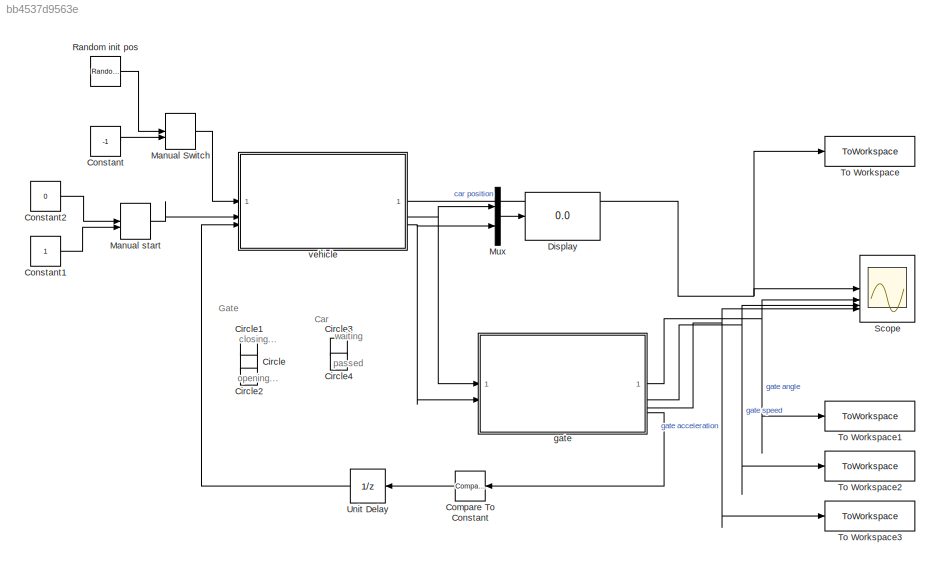
MODEL slx_bb4537d9563e
KIND model
CONFIG AbsTol = auto
CONFIG EnableMultiTasking = off
CONFIG FixedStep = dt
CONFIG MaxStep = auto
CONFIG MinStep = auto
CONFIG RelTol = 1e-3
CONFIG SampleTimeConstraint = Unconstrained
CONFIG SolverName = FixedStepAuto
CONFIG StartTime = 0.0
CONFIG StopTime = inf
WORKSPACE source: MATLAB code (in-file)
WORKSPACE dt = 0.2
BLOCK [LampBlock] Circle
  Icon = Circle
  LabelPosition = Hide
BLOCK [LampBlock] Circle1
  Icon = Circle
  LabelPosition = Hide
BLOCK [LampBlock] Circle2
  Icon = Circle
  LabelPosition = Hide
BLOCK [LampBlock] Circle3
  Icon = Circle
  LabelPosition = Hide
BLOCK [LampBlock] Circle4
  Icon = Circle
  LabelPosition = Hide
BLOCK [Reference] Compare To Constant  REF=simulink/Logic and Bit
Operations/Compare
To Constant
  SourceBlock = simulink/Logic and Bit\nOperations/Compare\nTo Constant
  SourceType = Compare To Constant
BLOCK [Constant] Constant
  Value = -1
BLOCK [Constant] Constant1
BLOCK [Constant] Constant2
  Value = 0
BLOCK [Display] Display
  Decimation = 1
BLOCK [ManualSwitch] Manual Switch
  CurrentSetting = 0
BLOCK [ManualSwitch] Manual start
BLOCK [Mux] Mux
  DisplayOption = bar
  Inputs = 2
BLOCK [RandomNumber] Random init pos
  Mean = -15
  Variance = 5
BLOCK [Scope] Scope
  Floating = off
  NumInputPorts = 4
  ScopeSpecificationString = Simulink.scopes.TimeScopeBlockCfg('CurrentConfiguration', extmgr.ConfigurationSet(extmgr.Configuration('Core','General UI',true),extmgr.Configuration('Core','Source UI',true),extmgr.Configuration('Sources','WiredSimulink',true),extmgr.Configuration('Visuals','Time Domain',true,'SerializedDisplays',{struct('MinYLimReal','-1.625','MaxYLimReal','4.625','YLabelReal','','MinYLimMag','0.00000','MaxYLimM...<+3855ch>
BLOCK [ToWorkspace] To Workspace
  FixptAsFi = on
  MaxDataPoints = inf
  SampleTime = -1
  Save2DSignal = 2-D array (concatenate along first dimension)
  VariableName = car_position
BLOCK [ToWorkspace] To Workspace1
  FixptAsFi = on
  MaxDataPoints = inf
  SampleTime = -1
  Save2DSignal = 2-D array (concatenate along first dimension)
  VariableName = gate_angle
BLOCK [ToWorkspace] To Workspace2
  FixptAsFi = on
  MaxDataPoints = inf
  SampleTime = -1
  Save2DSignal = 2-D array (concatenate along first dimension)
  VariableName = gate_speed
BLOCK [ToWorkspace] To Workspace3
  FixptAsFi = on
  MaxDataPoints = inf
  SampleTime = -1
  Save2DSignal = 2-D array (concatenate along first dimension)
  VariableName = gate_acceleration
BLOCK [UnitDelay] Unit Delay
  HasFrameUpgradeWarning = on
  SampleTime = -1
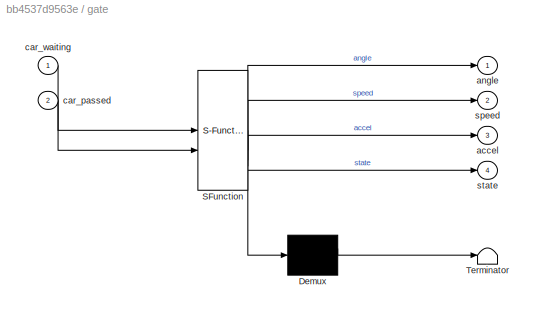
BLOCK [SubSystem] gate
  ErrorFcn = Stateflow.Translate.translate
  PermitHierarchicalResolution = ExplicitOnly
  SFBlockType = Chart
  TreatAsAtomicUnit = on
BLOCK [Demux] gate/ Demux 
  Outputs = 1
BLOCK [S-Function] gate/ SFunction 
  EnableBusSupport = on
  FunctionName = sf_sfun
  Parameters = dt
  PortCounts = [2 5]
  SFcnIsStateOwnerBlock = off
  SFunctionDeploymentMode = off
  Tag = Stateflow S-Function 1
BLOCK [Terminator] gate/ Terminator 
BLOCK [Outport] gate/accel
  Port = 3
BLOCK [Outport] gate/angle
BLOCK [Inport] gate/car_passed
  Port = 2
BLOCK [Inport] gate/car_waiting
BLOCK [Outport] gate/speed
  Port = 2
BLOCK [Outport] gate/state
  Port = 4
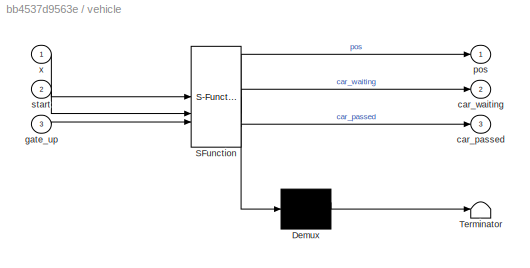
BLOCK [SubSystem] vehicle
  ErrorFcn = Stateflow.Translate.translate
  PermitHierarchicalResolution = ExplicitOnly
  SFBlockType = Chart
  TreatAsAtomicUnit = on
BLOCK [Demux] vehicle/ Demux 
  Outputs = 1
BLOCK [S-Function] vehicle/ SFunction 
  EnableBusSupport = on
  FunctionName = sf_sfun
  PortCounts = [3 4]
  SFcnIsStateOwnerBlock = off
  SFunctionDeploymentMode = off
  Tag = Stateflow S-Function 3
BLOCK [Terminator] vehicle/ Terminator 
BLOCK [Outport] vehicle/car_passed
  Port = 3
BLOCK [Outport] vehicle/car_waiting
  Port = 2
BLOCK [Inport] vehicle/gate_up
  Port = 3
BLOCK [Outport] vehicle/pos
BLOCK [Inport] vehicle/start
  Port = 2
BLOCK [Inport] vehicle/x
ANNOTATION (root): Car
ANNOTATION (root): Gate
ANNOTATION (root): closing...
ANNOTATION (root): opening...
ANNOTATION (root): passed
ANNOTATION (root): waiting
LINE Compare To Constant:1 -> Unit Delay:1
LINE Constant1:1 -> Manual start:2
LINE Constant2:1 -> Manual start:1
LINE Constant:1 -> Manual Switch:2
LINE Manual Switch:1 -> vehicle:1
LINE Manual start:1 -> vehicle:2
LINE Mux:1 -> Display:1
LINE Random init pos:1 -> Manual Switch:1
LINE Unit Delay:1 -> vehicle:3
NET gate:1 -> Scope:2, To Workspace1:1
NET gate:2 -> Scope:3, To Workspace2:1
NET gate:3 -> Scope:4, To Workspace3:1
LINE gate:4 -> Compare To Constant:1
NET vehicle:1 -> Scope:1, To Workspace:1
NET vehicle:2 -> Mux:1, gate:1
NET vehicle:3 -> Mux:2, gate:2
note: NET lines group one-source signal fan-out (src -> all destinations, sorted); 1:1 wires keep LINE
CHART gate states=14 transitions=16
  STATE_LABEL 'Closed\nangle=0;\nspeed=0;\naccel=0;\nstate=0;'
  STATE_LABEL 'Opening\nstate=2;'
  STATE_LABEL 'phaseB\nt=elapsed(sec)+dt;\naccel=0;\nspeed=4;\nangle=8+speed*t;'
  STATE_LABEL 'phaseA\nt=elapsed(sec)+dt;\naccel=1;\nspeed=accel*t;\nangle=0.5*accel*t^2'
  STATE_LABEL 'phaseC\nt=elapsed(sec)+dt;\naccel=-1;\nspeed=4+accel*t;\nangle=4*t+82+0.5*accel*t^2'
  STATE_LABEL '[angle>=8]'
  STATE_LABEL '[angle>=82]'
  STATE_LABEL 'phaseB\nt=elapsed(sec)+dt;\naccel=0;\nspeed=4;\nangle=8+speed*t;'
  STATE_LABEL 'phaseA\nt=elapsed(sec)+dt;\naccel=1;\nspeed=accel*t;\nangle=0.5*accel*t^2'
  STATE_LABEL 'phaseC\nt=elapsed(sec)+dt;\naccel=-1;\nspeed=4+accel*t;\nangle=4*t+82+0.5*accel*t^2'
  STATE_LABEL 'CaseC\nstate=2;'
  STATE_LABEL 'phaseB\nt=elapsed(sec)+dt;\naccel=0;\nspeed=4;\nangle=in_angle+speed*t;'
  STATE_LABEL 'phaseA\nt=elapsed(sec)+dt;\naccel=1;\nspeed=in_speed+accel*t;\nangle=in_angle+in_speed*t+0.5*accel*t^2'
  STATE_LABEL 'phaseC\nt=elapsed(sec)+dt;\naccel=-1;\nspeed=4+accel*t;\nangle=4*t+82+0.5*accel*t^2'
  STATE_LABEL '[speed>=4]'
  STATE_LABEL '[angle>=82]'
  STATE_LABEL 'phaseB\nt=elapsed(sec)+dt;\naccel=0;\nspeed=4;\nangle=in_angle+speed*t;'
  STATE_LABEL 'phaseA\nt=elapsed(sec)+dt;\naccel=1;\nspeed=in_speed+accel*t;\nangle=in_angle+in_speed*t+0.5*accel*t^2'
  STATE_LABEL 'phaseC\nt=elapsed(sec)+dt;\naccel=-1;\nspeed=4+accel*t;\nangle=4*t+82+0.5*accel*t^2'
  STATE_LABEL 'Closing\nstate=3;'
  STATE_LABEL 'phaseB\nt=elapsed(sec)+dt;\naccel=0;\nspeed=-4;\nangle=82+speed*t;'
  STATE_LABEL 'phaseA\nt=elapsed(sec)+dt;\naccel=-1;\nspeed=accel*t;\nangle=90+0.5*accel*t^2'
  STATE_LABEL 'phaseC\nt=elapsed(sec)+dt;\naccel=1;\nspeed=-4+accel*t;\nangle=-4*t+8+0.5*accel*t^2'
  STATE_LABEL '[angle<=82]'
  STATE_LABEL '[angle<=8]'
  STATE_LABEL 'phaseB\nt=elapsed(sec)+dt;\naccel=0;\nspeed=-4;\nangle=82+speed*t;'
  STATE_LABEL 'phaseA\nt=elapsed(sec)+dt;\naccel=-1;\nspeed=accel*t;\nangle=90+0.5*accel*t^2'
  STATE_LABEL 'phaseC\nt=elapsed(sec)+dt;\naccel=1;\nspeed=-4+accel*t;\nangle=-4*t+8+0.5*accel*t^2'
  STATE_LABEL 'Open\nangle=90;\nspeed=0;\naccel=0;\nstate=1;'
CHART vehicle states=5 transitions=6
  STATE_LABEL 'idle\ninit=x;\npos=init;\ncar_waiting=0;\ncar_passed=0;'
  STATE_LABEL 'approaching\npos=init+v*elapsed(sec);\n'
  STATE_LABEL 'stop\ntmp=pos;\ncar_waiting=1;\ncar_passed=0;'
  STATE_LABEL 'pass\n\npos=tmp+v*elapsed(sec);\ncar_waiting=0;\nex:\npos=tmp+v*elapsed(sec);\ntmp=pos;'
  STATE_LABEL 'passed\n\npos=tmp+v*elapsed(sec);\ncar_passed=1;'
CHART  states=0 transitions=0
CHART  states=0 transitions=0
